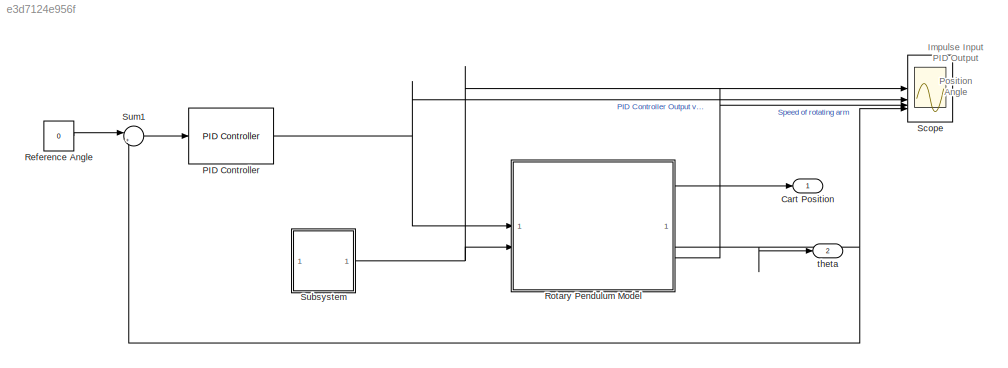
MODEL slx_e3d7124e956f
KIND model
CONFIG AbsTol = 1e-4
CONFIG EnableMultiTasking = on
CONFIG FixedStep = auto
CONFIG MaxStep = 0.0002
CONFIG MinStep = 0.0001
CONFIG RelTol = 1e-4
CONFIG SampleTimeConstraint = Unconstrained
CONFIG SolverName = VariableStepAuto
CONFIG StartTime = 0.0
CONFIG StopTime = 8
BLOCK [Outport] Cart Position
BLOCK [Reference] PID Controller  REF=slpidlib/PID Controller
  LibrarySourceBlock = simulink/Continuous/PID Controller
  SourceBlock = slpidlib/PID Controller
  SourceType = PID 1dof
BLOCK [Constant] Reference Angle
  Value = 0
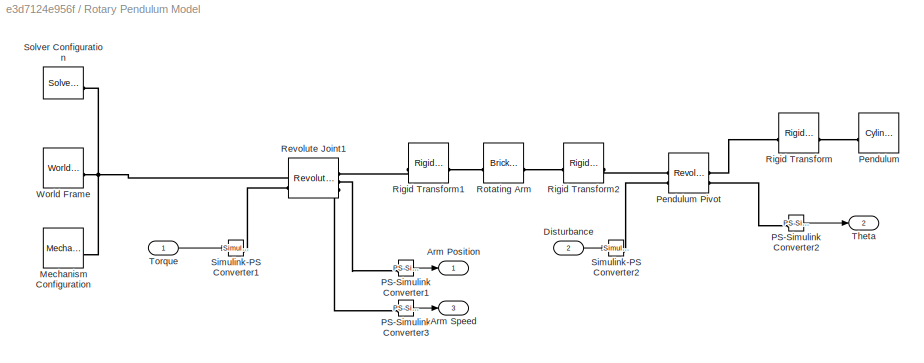
BLOCK [SubSystem] Rotary Pendulum Model
BLOCK [Outport] Rotary Pendulum Model/Arm Position
BLOCK [Outport] Rotary Pendulum Model/Arm Speed
  Port = 3
BLOCK [Inport] Rotary Pendulum Model/Disturbance
  Port = 2
BLOCK [Reference] Rotary Pendulum Model/Mechanism Configuration  REF=sm_lib/Utilities/Mechanism
Configuration
  SourceBlock = sm_lib/Utilities/Mechanism\nConfiguration
  SourceType = Mechanism\nConfiguration
BLOCK [Reference] Rotary Pendulum Model/PS-Simulink Converter1  REF=nesl_utility/PS-Simulink
Converter
  SourceBlock = nesl_utility/PS-Simulink\nConverter
  SourceType = PS-Simulink\nConverter
BLOCK [Reference] Rotary Pendulum Model/PS-Simulink Converter2  REF=nesl_utility/PS-Simulink
Converter
  SourceBlock = nesl_utility/PS-Simulink\nConverter
  SourceType = PS-Simulink\nConverter
BLOCK [Reference] Rotary Pendulum Model/PS-Simulink Converter3  REF=nesl_utility/PS-Simulink
Converter
  SourceBlock = nesl_utility/PS-Simulink\nConverter
  SourceType = PS-Simulink\nConverter
BLOCK [Reference] Rotary Pendulum Model/Pendulum  REF=sm_lib/Body Elements/Cylindrical Solid
  SourceBlock = sm_lib/Body Elements/Cylindrical Solid
  SourceType = Cylindrical Solid
BLOCK [Reference] Rotary Pendulum Model/Pendulum Pivot  REF=sm_lib/Joints/Revolute Joint
  SourceBlock = sm_lib/Joints/Revolute Joint
  SourceType = Revolute Joint
BLOCK [Reference] Rotary Pendulum Model/Revolute Joint1  REF=sm_lib/Joints/Revolute Joint
  SourceBlock = sm_lib/Joints/Revolute Joint
  SourceType = Revolute Joint
BLOCK [Reference] Rotary Pendulum Model/Rigid Transform  REF=sm_lib/Frames and
Transforms/Rigid
Transform
  SourceBlock = sm_lib/Frames and\nTransforms/Rigid\nTransform
  SourceType = Rigid\nTransform
BLOCK [Reference] Rotary Pendulum Model/Rigid Transform1  REF=sm_lib/Frames and
Transforms/Rigid
Transform
  NameLocation = top
  SourceBlock = sm_lib/Frames and\nTransforms/Rigid\nTransform
  SourceType = Rigid\nTransform
BLOCK [Reference] Rotary Pendulum Model/Rigid Transform2  REF=sm_lib/Frames and
Transforms/Rigid
Transform
  SourceBlock = sm_lib/Frames and\nTransforms/Rigid\nTransform
  SourceType = Rigid\nTransform
BLOCK [Reference] Rotary Pendulum Model/Rotating Arm  REF=sm_lib/Body Elements/Brick Solid
  NameLocation = top
  SourceBlock = sm_lib/Body Elements/Brick Solid
  SourceType = Brick Solid
BLOCK [Reference] Rotary Pendulum Model/Simulink-PS Converter1  REF=nesl_utility/Simulink-PS
Converter
  SourceBlock = nesl_utility/Simulink-PS\nConverter
  SourceType = Simulink-PS\nConverter
BLOCK [Reference] Rotary Pendulum Model/Simulink-PS Converter2  REF=nesl_utility/Simulink-PS
Converter
  SourceBlock = nesl_utility/Simulink-PS\nConverter
  SourceType = Simulink-PS\nConverter
BLOCK [Reference] Rotary Pendulum Model/Solver Configuration  REF=nesl_utility/Solver
Configuration
  SourceBlock = nesl_utility/Solver\nConfiguration
  SourceType = Solver\nConfiguration
BLOCK [Outport] Rotary Pendulum Model/Theta
  Port = 2
BLOCK [Inport] Rotary Pendulum Model/Torque
BLOCK [Reference] Rotary Pendulum Model/World Frame  REF=sm_lib/Frames and
Transforms/World Frame
  SourceBlock = sm_lib/Frames and\nTransforms/World Frame
  SourceType = World Frame
BLOCK [Scope] Scope
  Floating = off
  NumInputPorts = 4
  ScopeSpecificationString = Simulink.scopes.TimeScopeBlockCfg('CurrentConfiguration', extmgr.ConfigurationSet(extmgr.Configuration('Core','General UI',true,'FigureColor',[1 0.968627450980392 0.92156862745098]),extmgr.Configuration('Core','Source UI',true),extmgr.Configuration('Sources','WiredSimulink',true),extmgr.Configuration('Visuals','Time Domain',true,'TimeAxisLabels','All','SerializedDisplays',{struct('MinYLimReal','-3...<+4453ch>
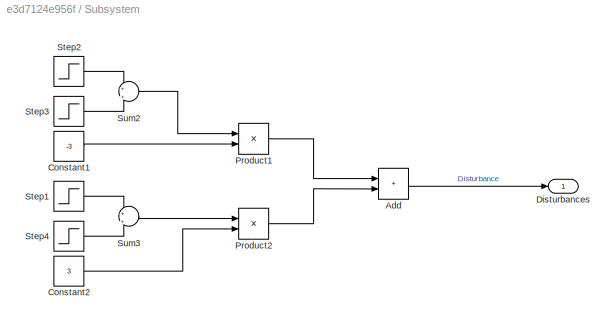
BLOCK [SubSystem] Subsystem
BLOCK [Sum] Subsystem/Add
  IconShape = rectangular
BLOCK [Constant] Subsystem/Constant1
  Value = -3
BLOCK [Constant] Subsystem/Constant2
  Value = 3
BLOCK [Outport] Subsystem/Disturbances
BLOCK [Product] Subsystem/Product1
BLOCK [Product] Subsystem/Product2
BLOCK [Step] Subsystem/Step1
  SampleTime = 0
  Time = 5
BLOCK [Step] Subsystem/Step2
  SampleTime = 0
  Time = 0.5
BLOCK [Step] Subsystem/Step3
  After = -1
  SampleTime = 0
  Time = 0.6
BLOCK [Step] Subsystem/Step4
  After = -1
  SampleTime = 0
  Time = 5.1
BLOCK [Sum] Subsystem/Sum2
  Inputs = +|+
BLOCK [Sum] Subsystem/Sum3
  Inputs = +|+
BLOCK [Sum] Sum1
  Inputs = |+-
BLOCK [Outport] theta
  Port = 2
ANNOTATION (root): Impulse Input PID Output Position Angle
NET PID Controller:1 -> Rotary Pendulum Model:1, Scope:2
LINE Reference Angle:1 -> Sum1:1
LINE Rotary Pendulum Model/Disturbance:1 -> Rotary Pendulum Model/Simulink-PS Converter2:1
LINE Rotary Pendulum Model/PS-Simulink Converter1:1 -> Rotary Pendulum Model/Arm Position:1
LINE Rotary Pendulum Model/PS-Simulink Converter2:1 -> Rotary Pendulum Model/Theta:1
LINE Rotary Pendulum Model/PS-Simulink Converter3:1 -> Rotary Pendulum Model/Arm Speed:1
LINE Rotary Pendulum Model/Torque:1 -> Rotary Pendulum Model/Simulink-PS Converter1:1
LINE Rotary Pendulum Model:1 -> Cart Position:1
NET Rotary Pendulum Model:2 -> Scope:4, Sum1:2, theta:1
LINE Rotary Pendulum Model:3 -> Scope:3
LINE Subsystem/Add:1 -> Subsystem/Disturbances:1
LINE Subsystem/Constant1:1 -> Subsystem/Product1:2
LINE Subsystem/Constant2:1 -> Subsystem/Product2:2
LINE Subsystem/Product1:1 -> Subsystem/Add:1
LINE Subsystem/Product2:1 -> Subsystem/Add:2
LINE Subsystem/Step1:1 -> Subsystem/Sum3:1
LINE Subsystem/Step2:1 -> Subsystem/Sum2:1
LINE Subsystem/Step3:1 -> Subsystem/Sum2:2
LINE Subsystem/Step4:1 -> Subsystem/Sum3:2
LINE Subsystem/Sum2:1 -> Subsystem/Product1:1
LINE Subsystem/Sum3:1 -> Subsystem/Product2:1
NET Subsystem:1 -> Rotary Pendulum Model:2, Scope:1
LINE Sum1:1 -> PID Controller:1
PNET net1: Rotary Pendulum Model/Mechanism Configuration:RConn1 -- Rotary Pendulum Model/Revolute Joint1:LConn1 -- Rotary Pendulum Model/Solver Configuration:RConn1 -- Rotary Pendulum Model/World Frame:RConn1
PLINE Rotary Pendulum Model/PS-Simulink Converter1:LConn1 -- Rotary Pendulum Model/Revolute Joint1:RConn2
PLINE Rotary Pendulum Model/PS-Simulink Converter2:LConn1 -- Rotary Pendulum Model/Pendulum Pivot:RConn2
PLINE Rotary Pendulum Model/PS-Simulink Converter3:LConn1 -- Rotary Pendulum Model/Revolute Joint1:RConn3
PLINE Rotary Pendulum Model/Pendulum Pivot:LConn1 -- Rotary Pendulum Model/Rigid Transform2:RConn1
PLINE Rotary Pendulum Model/Pendulum Pivot:LConn2 -- Rotary Pendulum Model/Simulink-PS Converter2:RConn1
PLINE Rotary Pendulum Model/Pendulum Pivot:RConn1 -- Rotary Pendulum Model/Rigid Transform:LConn1
PLINE Rotary Pendulum Model/Pendulum:LConn1 -- Rotary Pendulum Model/Rigid Transform:RConn1
PLINE Rotary Pendulum Model/Revolute Joint1:LConn2 -- Rotary Pendulum Model/Simulink-PS Converter1:RConn1
PLINE Rotary Pendulum Model/Revolute Joint1:RConn1 -- Rotary Pendulum Model/Rigid Transform1:RConn1
PLINE Rotary Pendulum Model/Rigid Transform1:LConn1 -- Rotary Pendulum Model/Rotating Arm:RConn1
PLINE Rotary Pendulum Model/Rigid Transform2:LConn1 -- Rotary Pendulum Model/Rotating Arm:LConn1
note: NET lines group one-source signal fan-out (src -> all destinations, sorted); 1:1 wires keep LINE; PNET lines group multi-terminal physical nets as a canonical sorted terminal list (undirected conserving connections); 2-terminal nets keep the pairwise PLINE form
